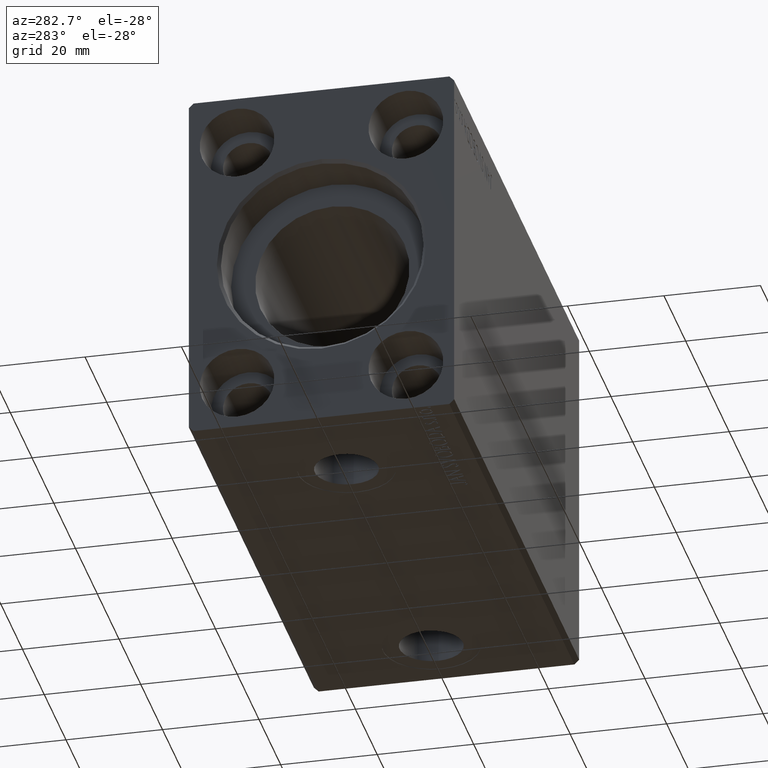
[diagram: clean part render]
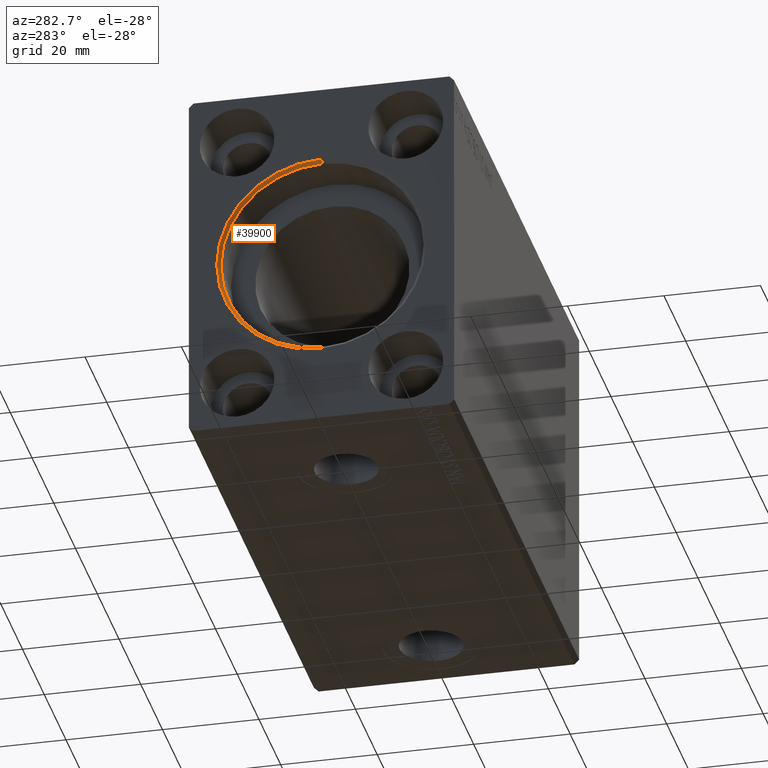
[diagram: same view with one face highlighted and labeled with its STEP entity id]
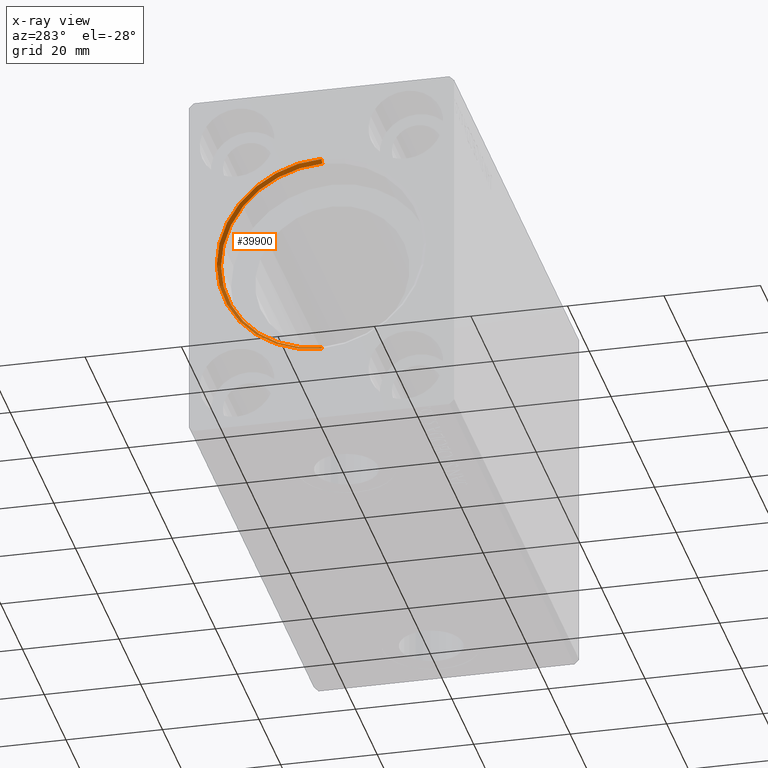
[diagram: x-ray of the same camera — body ghosted, the highlighted face saturated]
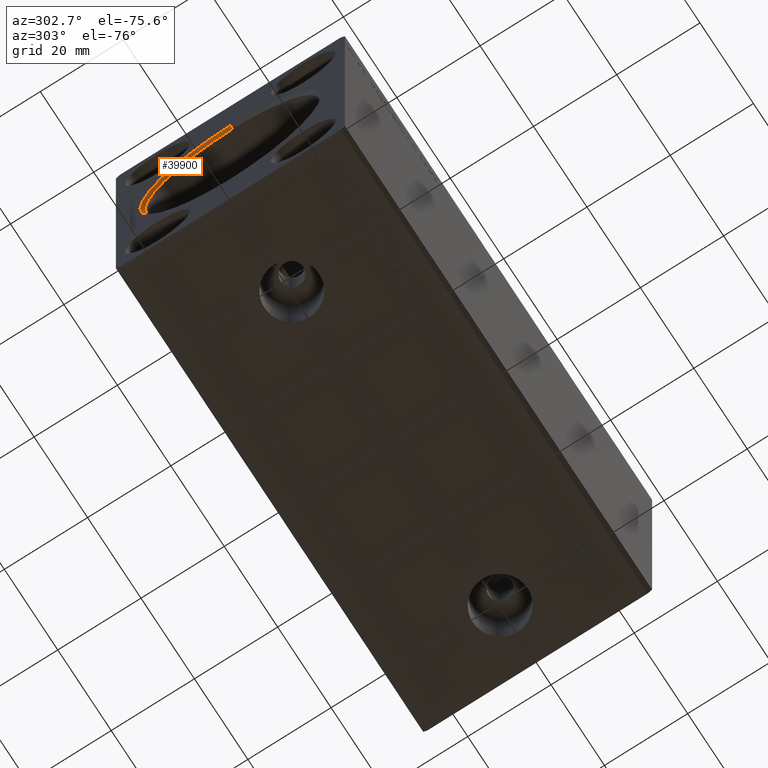
[diagram: same view with one face highlighted and labeled with its STEP entity id]
A machine part, auxiliary view. The second image highlights one B-rep face of the part: STEP entity #39900.
The next image is the same camera in x-ray: the body ghosted, the highlighted face saturated — about 0% of this face is hidden behind the body in this view.
A second angle (auxiliary view) of the same face is appended — the face is thin or edge-on in the first view.
In plain terms, the highlighted conical surface has half-angle 45 deg.
Its self-contained STEP definition (entity closure, byte-faithful):
#1104 = EDGE_CURVE ( 'NONE', #14832, #26997, #6912, .T. ) ;
#2387 = CARTESIAN_POINT ( 'NONE',  ( 0.000000000000000000, 0.000000000000000000, 0.000000000000000000 ) ) ;
#2612 = CARTESIAN_POINT ( 'NONE',  ( 0.7000000000000443645, 0.000000000000000000, 0.000000000000000000 ) ) ;
#4887 = LINE ( 'NONE', #31391, #30299 ) ;
#5502 = VECTOR ( 'NONE', #26978, 1000.000000000000000 ) ;
#6912 = LINE ( 'NONE', #20715, #5502 ) ;
#12263 = CARTESIAN_POINT ( 'NONE',  ( 0.000000000000000000, 2.657483554149761471E-15, -21.70000000000003837 ) ) ;
#12302 = DIRECTION ( 'NONE',  ( 0.000000000000000000, 0.000000000000000000, -1.000000000000000000 ) ) ;
#12631 = CIRCLE ( 'NONE', #24352, 21.70000000000003837 ) ;
#13069 = CARTESIAN_POINT ( 'NONE',  ( 0.000000000000000000, 0.000000000000000000, 21.70000000000003837 ) ) ;
#14832 = VERTEX_POINT ( 'NONE', #32854 ) ;
#15764 = DIRECTION ( 'NONE',  ( 0.000000000000000000, 0.000000000000000000, 1.000000000000000000 ) ) ;
#16663 = EDGE_LOOP ( 'NONE', ( #28396, #23772, #38470, #27865 ) ) ;
#20241 = AXIS2_PLACEMENT_3D ( 'NONE', #28556, #41678, #27728 ) ;
#20715 = CARTESIAN_POINT ( 'NONE',  ( 0.7000000000000443645, 0.000000000000000000, 21.00000000000000000 ) ) ;
#20743 = EDGE_CURVE ( 'NONE', #27165, #40182, #4887, .T. ) ;
#21801 = DIRECTION ( 'NONE',  ( 1.000000000000000000, 0.000000000000000000, 0.000000000000000000 ) ) ;
#22300 = CIRCLE ( 'NONE', #20241, 21.00000000000000000 ) ;
#22357 = CONICAL_SURFACE ( 'NONE', #38857, 21.00000000000000000, 0.7853981633974432830 ) ;
#23772 = ORIENTED_EDGE ( 'NONE', *, *, #36981, .F. ) ;
#24352 = AXIS2_PLACEMENT_3D ( 'NONE', #2387, #21801, #12302 ) ;
#24928 = DIRECTION ( 'NONE',  ( -0.7071067811865511255, 8.659560562354889717E-17, -0.7071067811865440200 ) ) ;
#26978 = DIRECTION ( 'NONE',  ( -0.7071067811865511255, 0.000000000000000000, 0.7071067811865440200 ) ) ;
#26997 = VERTEX_POINT ( 'NONE', #13069 ) ;
#27165 = VERTEX_POINT ( 'NONE', #34962 ) ;
#27728 = DIRECTION ( 'NONE',  ( 0.000000000000000000, 0.000000000000000000, -1.000000000000000000 ) ) ;
#27865 = ORIENTED_EDGE ( 'NONE', *, *, #35319, .F. ) ;
#28396 = ORIENTED_EDGE ( 'NONE', *, *, #20743, .F. ) ;
#28556 = CARTESIAN_POINT ( 'NONE',  ( 0.7000000000000443645, 0.000000000000000000, 0.000000000000000000 ) ) ;
#30299 = VECTOR ( 'NONE', #24928, 1000.000000000000000 ) ;
#31391 = CARTESIAN_POINT ( 'NONE',  ( 0.7000000000000443645, 2.571758278209441661E-15, -21.00000000000000000 ) ) ;
#32854 = CARTESIAN_POINT ( 'NONE',  ( 0.7000000000000443645, 0.000000000000000000, 21.00000000000000000 ) ) ;
#34962 = CARTESIAN_POINT ( 'NONE',  ( 0.7000000000000443645, 2.571758278209441661E-15, -21.00000000000000000 ) ) ;
#35319 = EDGE_CURVE ( 'NONE', #40182, #26997, #12631, .T. ) ;
#36981 = EDGE_CURVE ( 'NONE', #14832, #27165, #22300, .T. ) ;
#38470 = ORIENTED_EDGE ( 'NONE', *, *, #1104, .T. ) ;
#38857 = AXIS2_PLACEMENT_3D ( 'NONE', #2612, #42255, #15764 ) ;
#39900 = ADVANCED_FACE ( 'NONE', ( #41825 ), #22357, .F. ) ;
#40182 = VERTEX_POINT ( 'NONE', #12263 ) ;
#41678 = DIRECTION ( 'NONE',  ( -1.000000000000000000, 0.000000000000000000, 0.000000000000000000 ) ) ;
#41825 = FACE_OUTER_BOUND ( 'NONE', #16663, .T. ) ;
#42255 = DIRECTION ( 'NONE',  ( -1.000000000000000000, 0.000000000000000000, 0.000000000000000000 ) ) ;